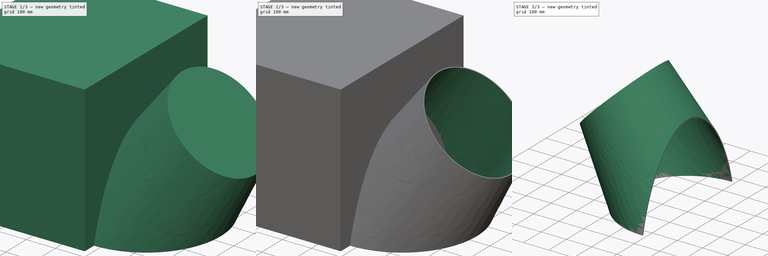
[diagram: build sequence overview — one tinted view per stage of 3, left to right]
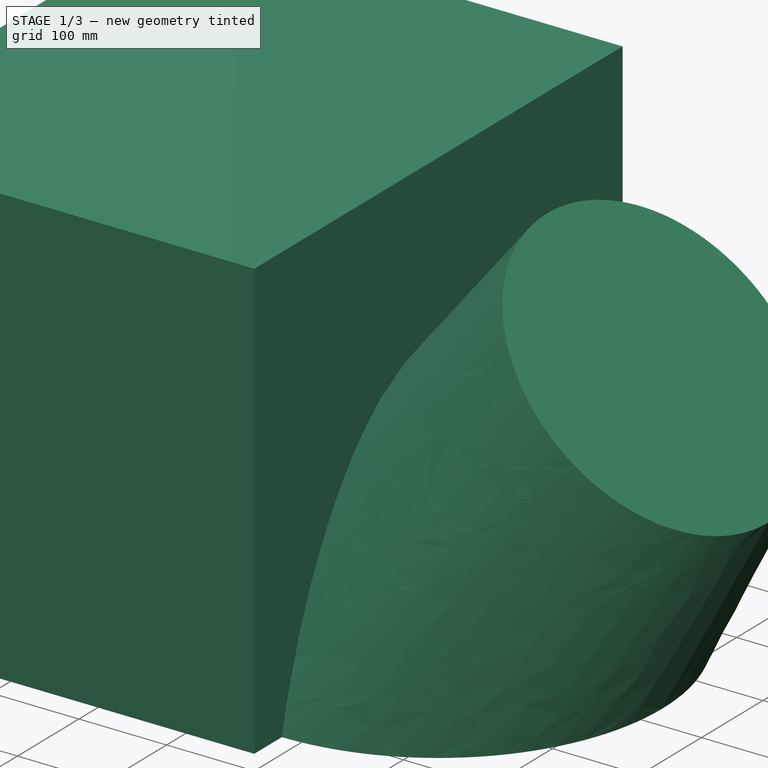
[diagram: stage 1 of 3 — iso view after this stage's code; geometry added in this stage tinted green]
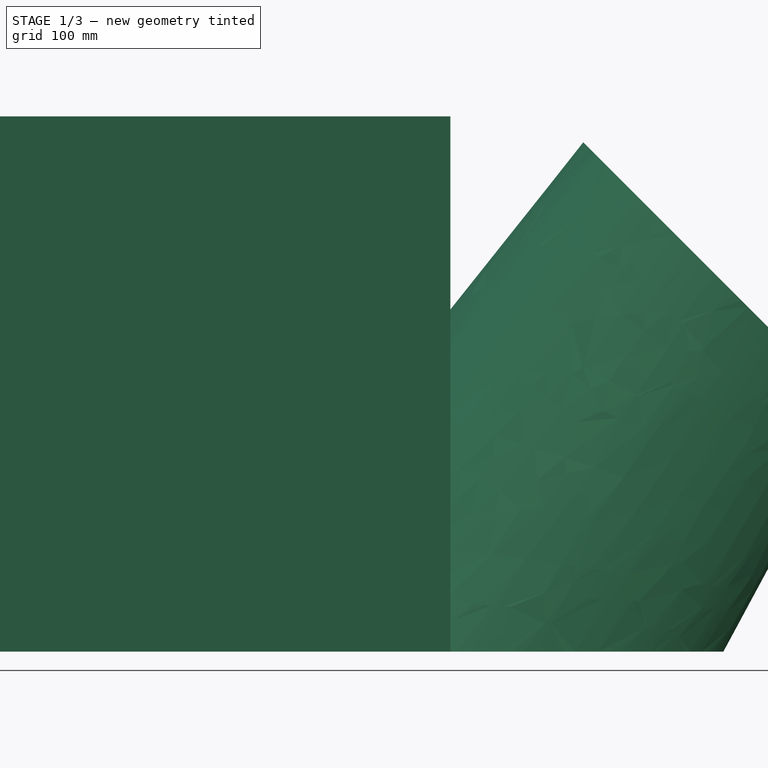
[diagram: stage 1 of 3 — front view after this stage's code; geometry added in this stage tinted green]
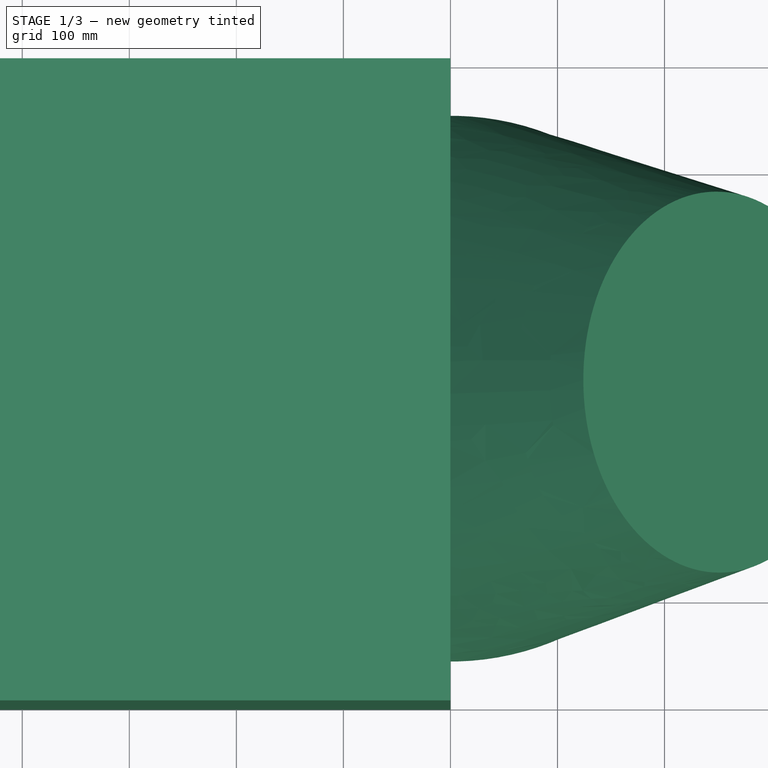
[diagram: stage 1 of 3 — top view after this stage's code; geometry added in this stage tinted green]
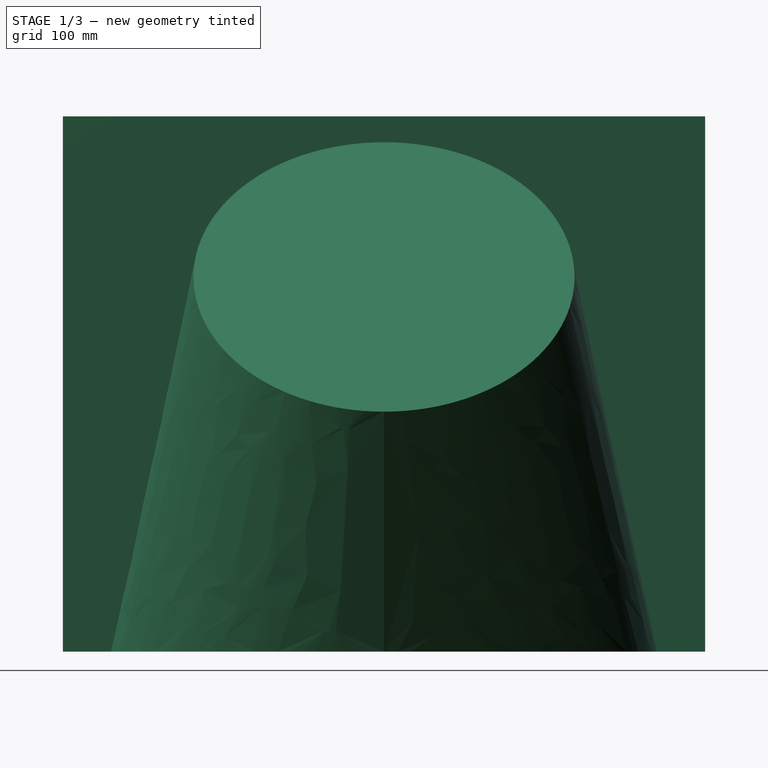
[diagram: stage 1 of 3 — right view after this stage's code; geometry added in this stage tinted green]
FCSTD DOCUMENT  (FreeCAD 0.17R13247 (Git))
Label: CALÇA
License: All rights reserved
LicenseURL: http://en.wikipedia.org/wiki/All_rights_reserved
objects: Sketcher::SketchObject×4, PartDesign::AdditiveLoft×2, Part::Cut×2, PartDesign::Body×1, Part::Box×1, Part::Mirroring×1
note: 13 computed .brp shape members not serialized (recipe doc carries the construction recipe); baked Part::Feature solids carry a one-line shape summary decoded from their .brp

FEATURE [PartDesign::Body] Body
  Group = -> [Sketch,Sketch001,AdditiveLoft]
  Origin = -> Origin
  Tip = -> AdditiveLoft
FEATURE [Sketcher::SketchObject] Sketch002
  MapMode = 5
  Support = -> [XY_Plane001]
  sketch-geometry (1):
    g0: Circle CenterX=0 CenterY=0 CenterZ=0 NormalX=0 NormalY=0 NormalZ=1 AngleXU=0 Radius=255
  constraints (2):
    c: Coincident(g0,g-1)
    c: Radius(g0) = 255
FEATURE [Sketcher::SketchObject] Sketch003
  AttachmentOffset = pos=(250,0,350) rot=(0,1,0;0.785398rad)
  MapMode = 5
  Placement = pos=(250,0,350) rot=(0,1,0;0.785398rad)
  Support = -> [XY_Plane001]
  sketch-geometry (1):
    g0: Circle CenterX=0 CenterY=0 CenterZ=0 NormalX=0 NormalY=0 NormalZ=1 AngleXU=0 Radius=178
  constraints (2):
    c: Coincident(g0,g-1)
    c: Radius(g0) = 178
FEATURE [PartDesign::AdditiveLoft] AdditiveLoft001
  Closed = true
  Profile = -> Sketch002
  Ruled = true
  Sections = -> [Sketch003]
FEATURE [Part::Box] Box  label="Cube"
  AttacherType = Attacher::AttachEngine3D
  Height = 500
  Length = 500
  Placement = pos=(-500,-300,0) rot=(0,0,1;0rad)
  Width = 600
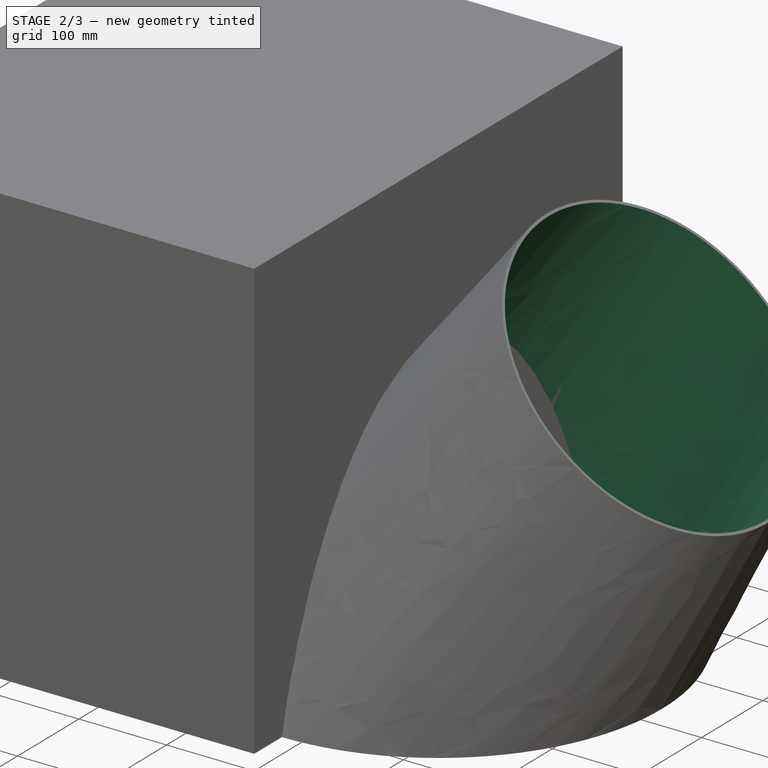
[diagram: stage 2 of 3 — iso view after this stage's code; geometry added in this stage tinted green]
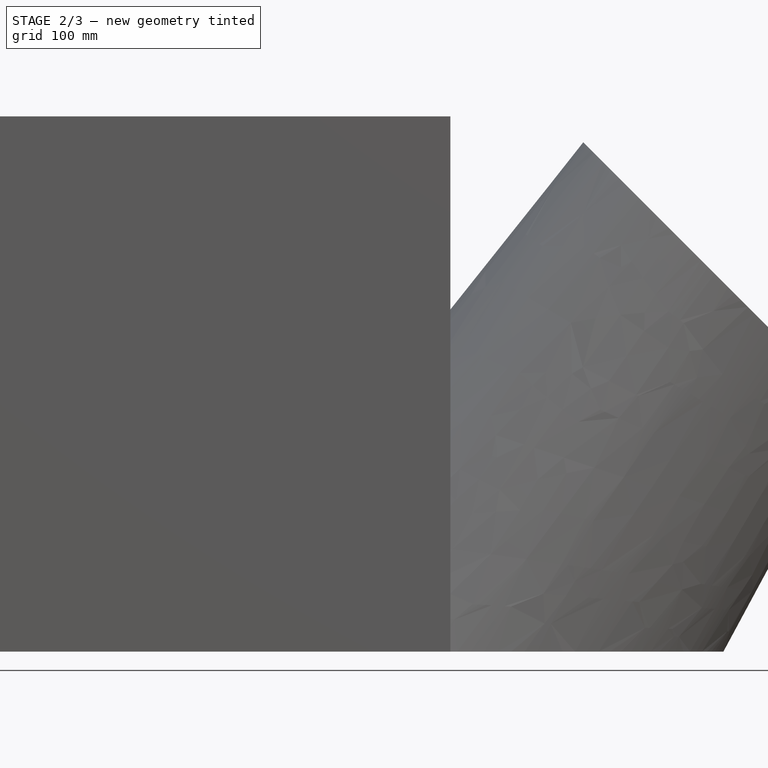
[diagram: stage 2 of 3 — front view after this stage's code; geometry added in this stage tinted green]
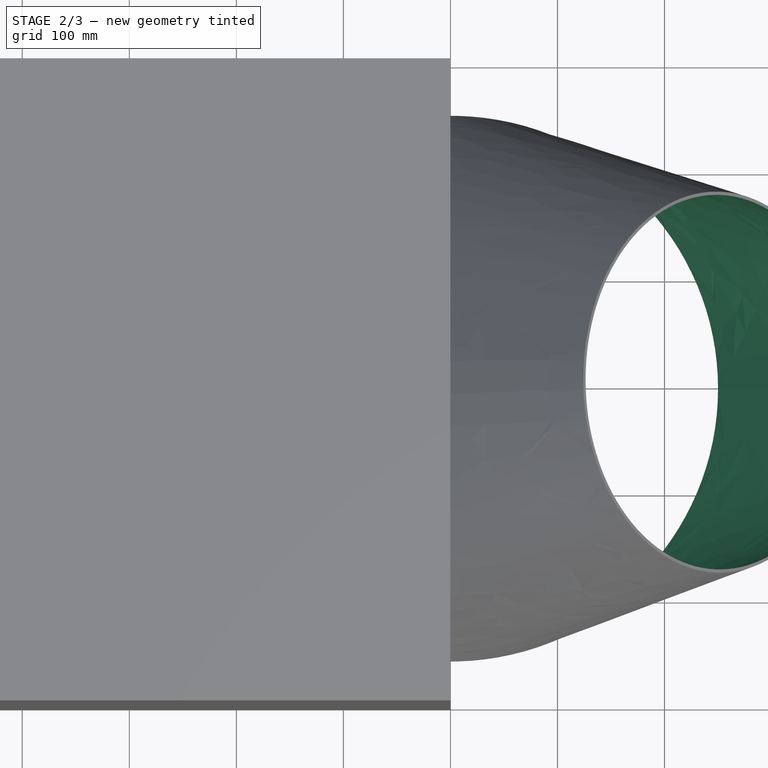
[diagram: stage 2 of 3 — top view after this stage's code; geometry added in this stage tinted green]
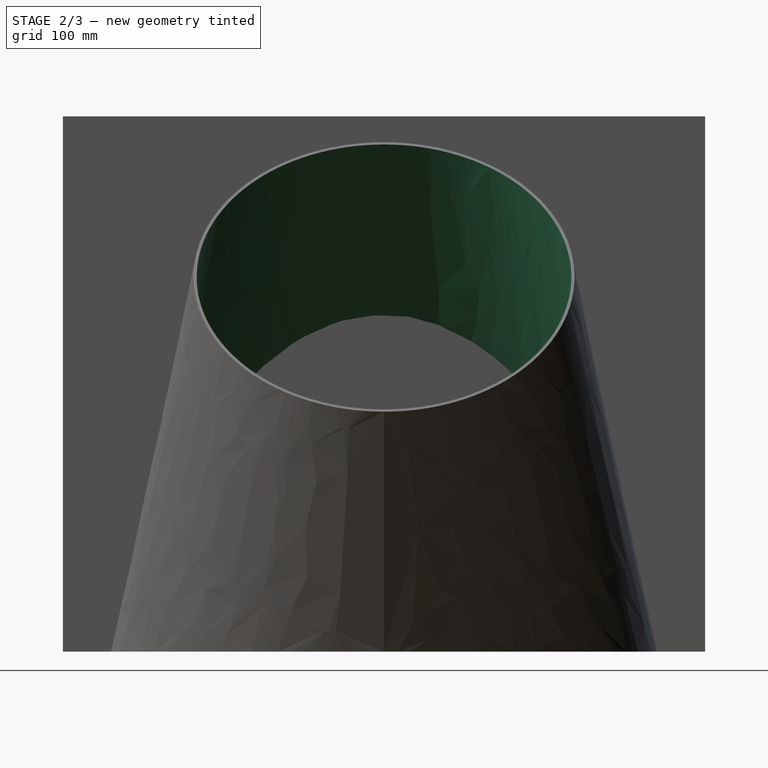
[diagram: stage 2 of 3 — right view after this stage's code; geometry added in this stage tinted green]
FEATURE [Sketcher::SketchObject] Sketch
  MapMode = 5
  Support = -> [XY_Plane]
  sketch-geometry (1):
    g0: Circle CenterX=0 CenterY=0 CenterZ=0 NormalX=0 NormalY=0 NormalZ=1 AngleXU=0 Radius=250
  constraints (2):
    c: Coincident(g0,g-1)
    c: Radius(g0) = 250
FEATURE [Sketcher::SketchObject] Sketch001
  AttachmentOffset = pos=(250,0,350) rot=(0,1,0;0.785398rad)
  MapMode = 5
  Placement = pos=(250,0,350) rot=(0,1,0;0.785398rad)
  Support = -> [XY_Plane]
  sketch-geometry (1):
    g0: Circle CenterX=0 CenterY=0 CenterZ=0 NormalX=0 NormalY=0 NormalZ=1 AngleXU=0 Radius=175
  constraints (2):
    c: Coincident(g0,g-1)
    c: Radius(g0) = 175
FEATURE [PartDesign::AdditiveLoft] AdditiveLoft
  Closed = true
  Profile = -> Sketch
  Ruled = true
  Sections = -> [Sketch001]
FEATURE [Part::Cut] Cut
  Base = -> AdditiveLoft001
  Tool = -> AdditiveLoft
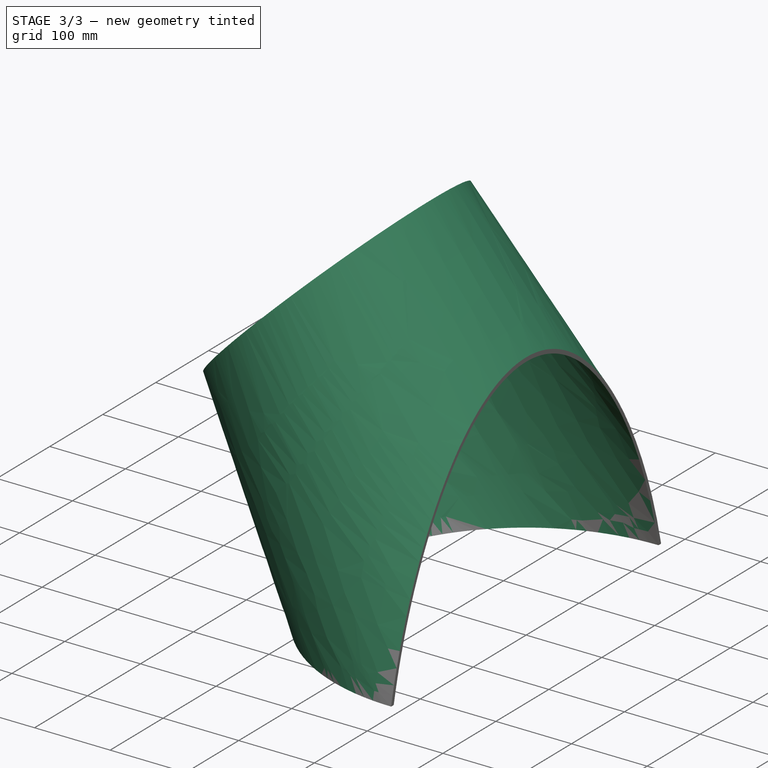
[diagram: stage 3 of 3 — iso view after this stage's code; geometry added in this stage tinted green]
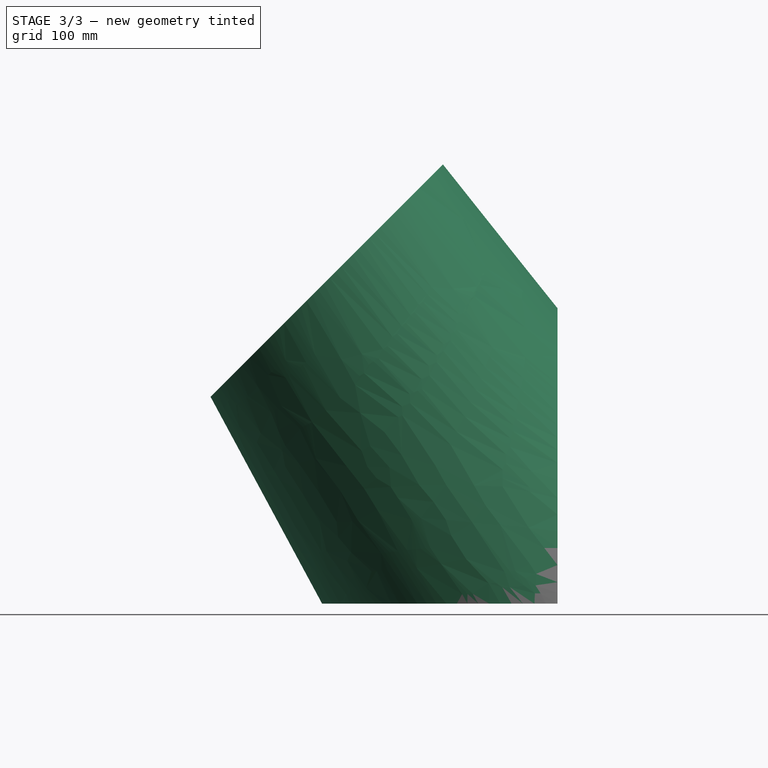
[diagram: stage 3 of 3 — front view after this stage's code; geometry added in this stage tinted green]
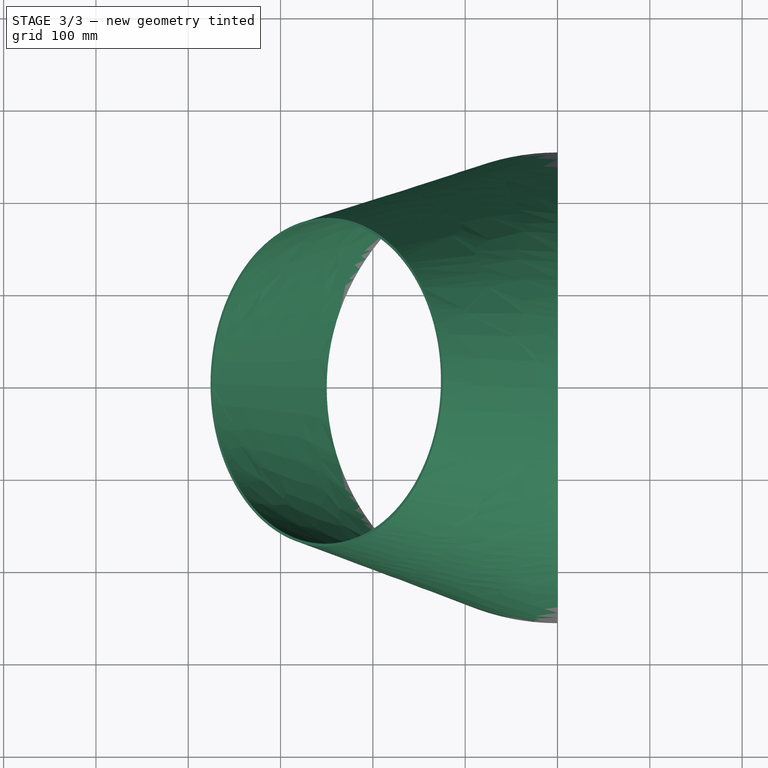
[diagram: stage 3 of 3 — top view after this stage's code; geometry added in this stage tinted green]
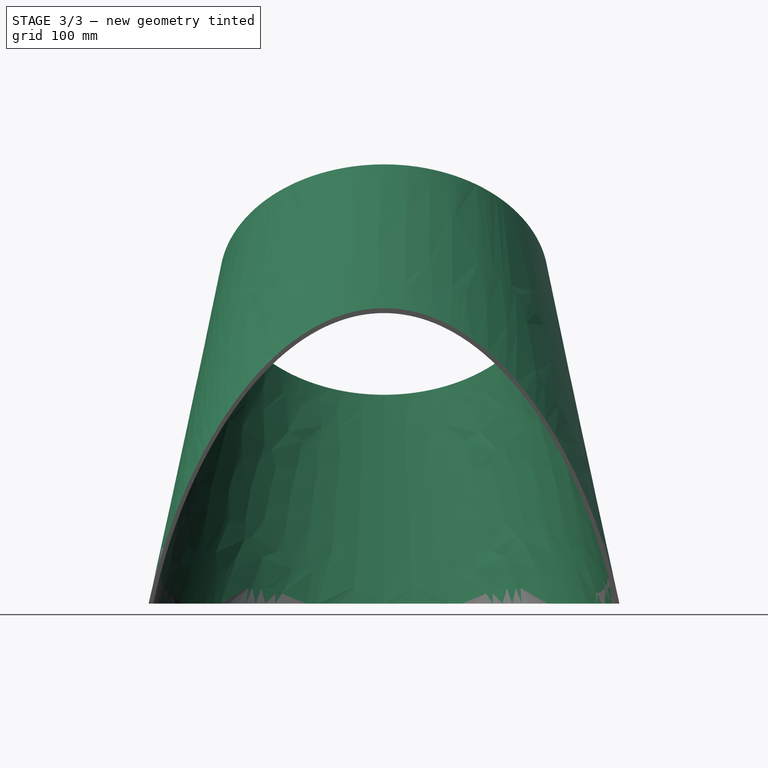
[diagram: stage 3 of 3 — right view after this stage's code; geometry added in this stage tinted green]
FEATURE [Part::Cut] Cut001
  Base = -> Cut
  Tool = -> Box
FEATURE [Part::Mirroring] Part__Mirroring  label="Cut001 (Mirror #1)"
  Base = (0,0,0)
  Normal = (1,0,0)
  Source = -> Cut001
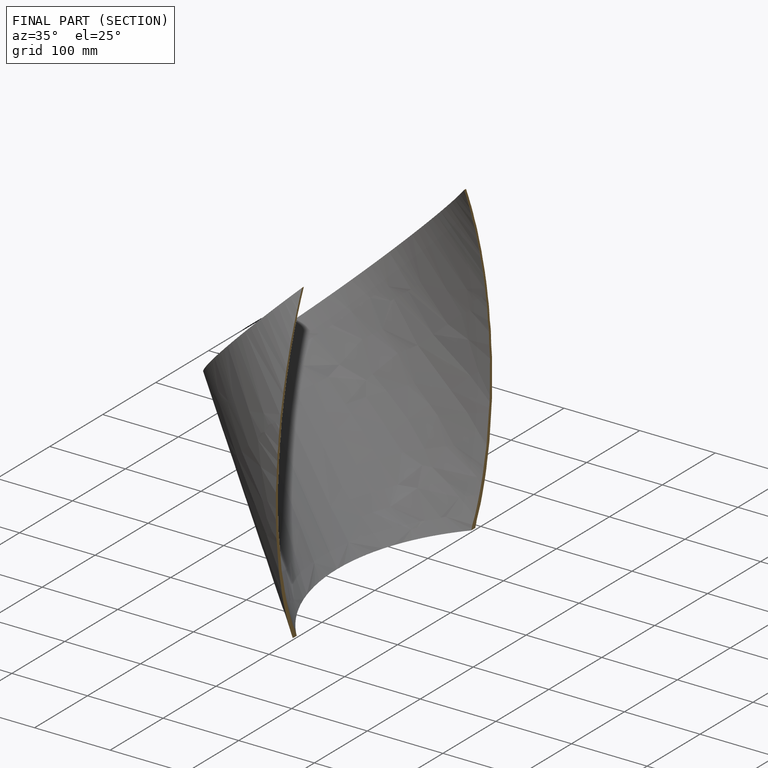
[diagram: finished part — half-section view (interior)]
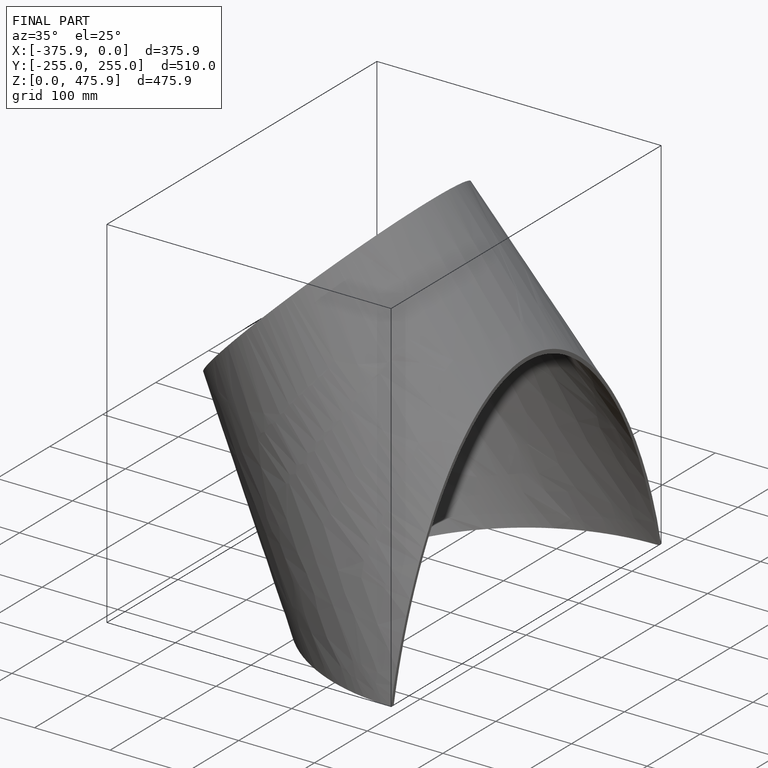
[diagram: finished part — iso view with bounding-box wireframe]
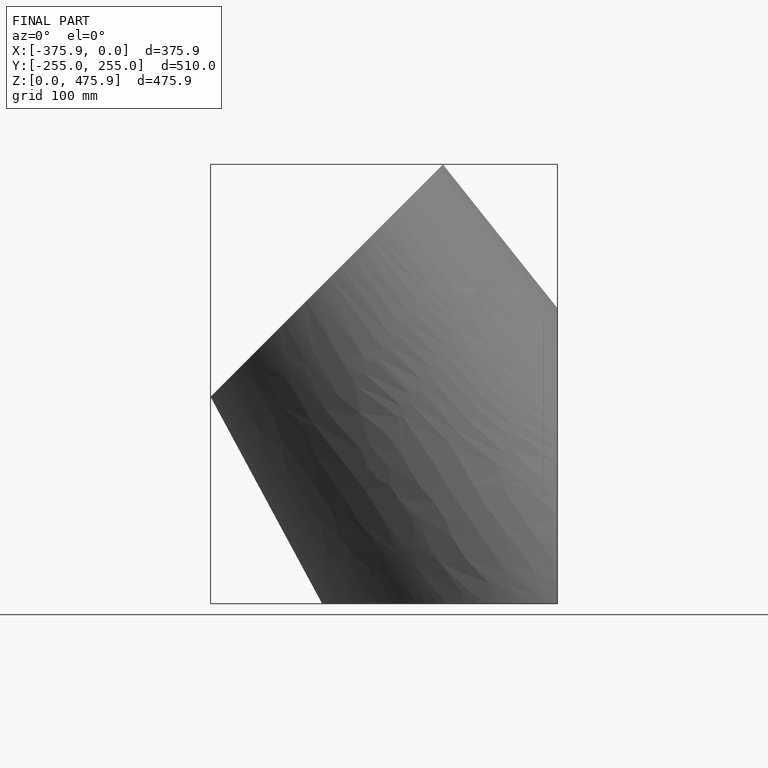
[diagram: finished part — front view with bounding-box wireframe]
